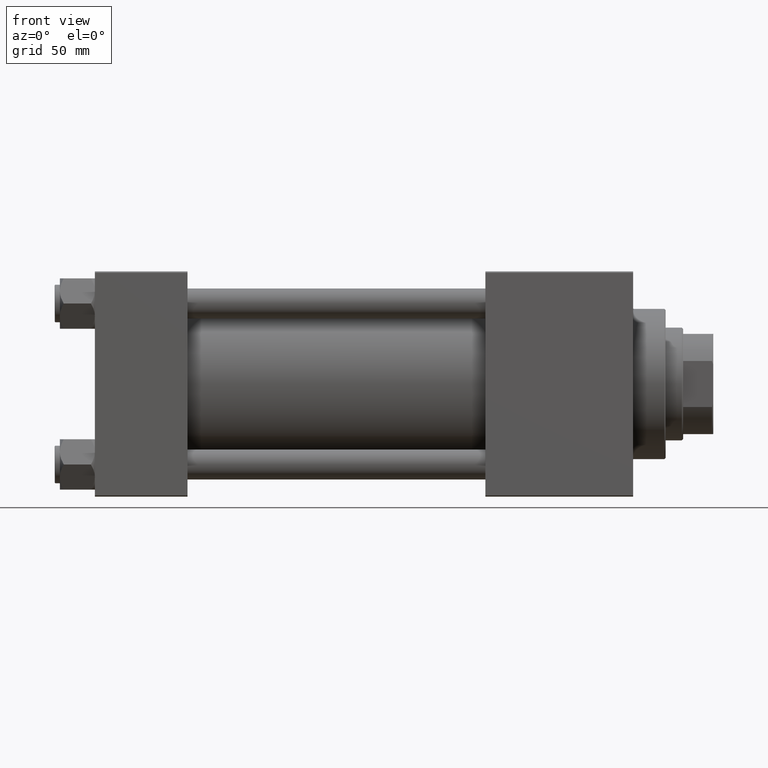
[diagram: clean part render]
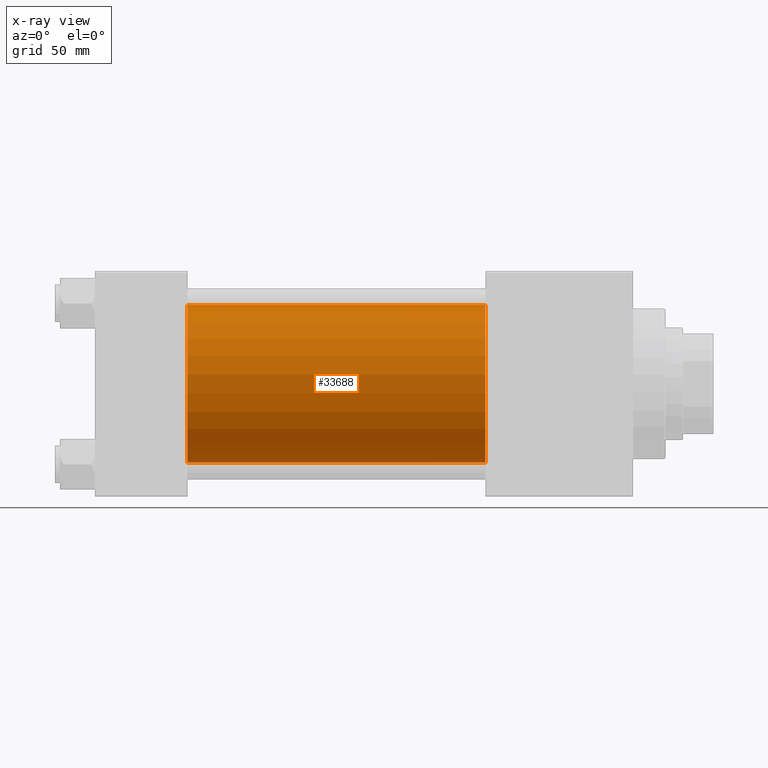
[diagram: x-ray — body ghosted, one internal face saturated and labeled with its STEP entity id]
A machine part, front view, then the same camera in x-ray: the body is ghosted and one INTERNAL B-rep face — a face not visible from any outside direction — is saturated and labeled: STEP entity #33688.
In plain terms, the highlighted cylindrical surface (partial cylindrical patch) has radius 31.5 mm, axis along (-1, -0, -0).
Its self-contained STEP definition (entity closure, byte-faithful):
#870 = CARTESIAN_POINT ( 'NONE',  ( 37.00000000000000000, 1.255552203348951850E-15, -31.50000000000000000 ) ) ;
#1106 = VERTEX_POINT ( 'NONE', #22426 ) ;
#1769 = VERTEX_POINT ( 'NONE', #37255 ) ;
#1811 = FACE_OUTER_BOUND ( 'NONE', #9312, .T. ) ;
#2378 = EDGE_CURVE ( 'NONE', #1106, #2571, #21746, .T. ) ;
#2571 = VERTEX_POINT ( 'NONE', #870 ) ;
#3403 = VERTEX_POINT ( 'NONE', #38422 ) ;
#6057 = CARTESIAN_POINT ( 'NONE',  ( 156.0000000000000000, -2.602085213965210642E-15, 0.000000000000000000 ) ) ;
#6226 = DIRECTION ( 'NONE',  ( -1.000000000000000000, -0.000000000000000000, -0.000000000000000000 ) ) ;
#6933 = ORIENTED_EDGE ( 'NONE', *, *, #2378, .F. ) ;
#8582 = ORIENTED_EDGE ( 'NONE', *, *, #44638, .T. ) ;
#9284 = CARTESIAN_POINT ( 'NONE',  ( 156.0000000000000000, 1.255552203348951850E-15, -31.50000000000000000 ) ) ;
#9312 = EDGE_LOOP ( 'NONE', ( #36521, #8582, #6933, #27891 ) ) ;
#10018 = DIRECTION ( 'NONE',  ( 1.000000000000000000, 0.000000000000000000, 0.000000000000000000 ) ) ;
#12912 = DIRECTION ( 'NONE',  ( 0.000000000000000000, 0.000000000000000000, -1.000000000000000000 ) ) ;
#13631 = AXIS2_PLACEMENT_3D ( 'NONE', #48190, #21320, #36784 ) ;
#14139 = EDGE_CURVE ( 'NONE', #3403, #1106, #28449, .T. ) ;
#21320 = DIRECTION ( 'NONE',  ( -1.000000000000000000, -0.000000000000000000, -0.000000000000000000 ) ) ;
#21746 = CIRCLE ( 'NONE', #40419, 31.50000000000000000 ) ;
#22426 = CARTESIAN_POINT ( 'NONE',  ( 37.00000000000000000, -2.602085213965210642E-15, 31.50000000000000000 ) ) ;
#24238 = EDGE_CURVE ( 'NONE', #3403, #1769, #32780, .T. ) ;
#24458 = VECTOR ( 'NONE', #35851, 1000.000000000000000 ) ;
#25459 = DIRECTION ( 'NONE',  ( 0.000000000000000000, 0.000000000000000000, -1.000000000000000000 ) ) ;
#26841 = VECTOR ( 'NONE', #6226, 1000.000000000000000 ) ;
#27891 = ORIENTED_EDGE ( 'NONE', *, *, #14139, .F. ) ;
#28449 = LINE ( 'NONE', #44436, #24458 ) ;
#29261 = CARTESIAN_POINT ( 'NONE',  ( 37.00000000000000000, -2.602085213965210642E-15, 0.000000000000000000 ) ) ;
#31264 = AXIS2_PLACEMENT_3D ( 'NONE', #6057, #48136, #12912 ) ;
#32780 = CIRCLE ( 'NONE', #31264, 31.50000000000000000 ) ;
#33688 = ADVANCED_FACE ( 'NONE', ( #1811 ), #40604, .F. ) ;
#35851 = DIRECTION ( 'NONE',  ( -1.000000000000000000, -0.000000000000000000, -0.000000000000000000 ) ) ;
#36521 = ORIENTED_EDGE ( 'NONE', *, *, #24238, .T. ) ;
#36784 = DIRECTION ( 'NONE',  ( 0.000000000000000000, 0.000000000000000000, 1.000000000000000000 ) ) ;
#37255 = CARTESIAN_POINT ( 'NONE',  ( 156.0000000000000000, 1.255552203348951850E-15, -31.50000000000000000 ) ) ;
#38422 = CARTESIAN_POINT ( 'NONE',  ( 156.0000000000000000, -2.602085213965210642E-15, 31.50000000000000000 ) ) ;
#40419 = AXIS2_PLACEMENT_3D ( 'NONE', #29261, #10018, #25459 ) ;
#40604 = CYLINDRICAL_SURFACE ( 'NONE', #13631, 31.50000000000000000 ) ;
#44436 = CARTESIAN_POINT ( 'NONE',  ( 156.0000000000000000, -2.602085213965210642E-15, 31.50000000000000000 ) ) ;
#44638 = EDGE_CURVE ( 'NONE', #1769, #2571, #45001, .T. ) ;
#45001 = LINE ( 'NONE', #9284, #26841 ) ;
#48136 = DIRECTION ( 'NONE',  ( 1.000000000000000000, 0.000000000000000000, 0.000000000000000000 ) ) ;
#48190 = CARTESIAN_POINT ( 'NONE',  ( 156.0000000000000000, -2.602085213965210642E-15, 0.000000000000000000 ) ) ;